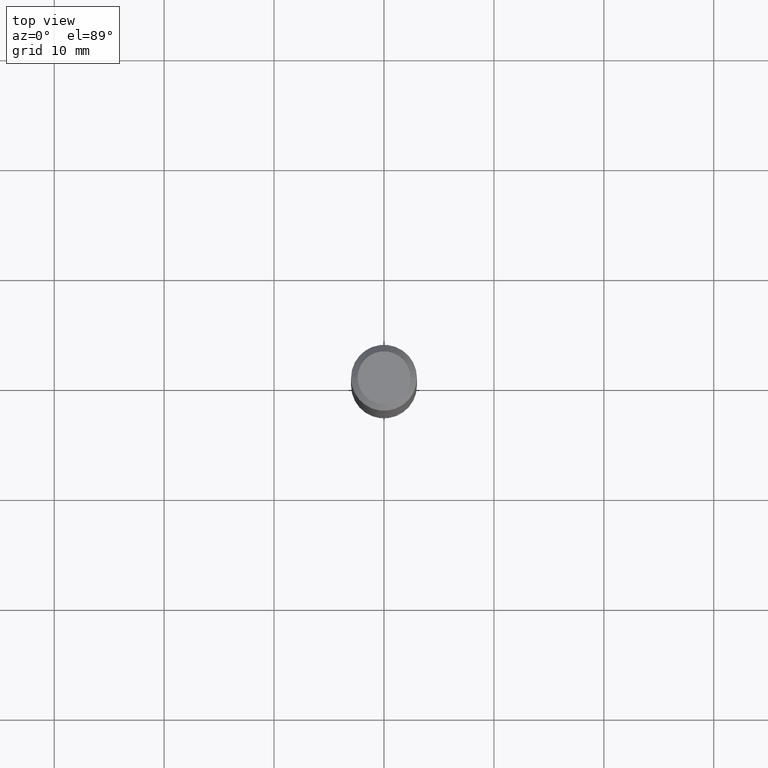
[diagram: clean part render]
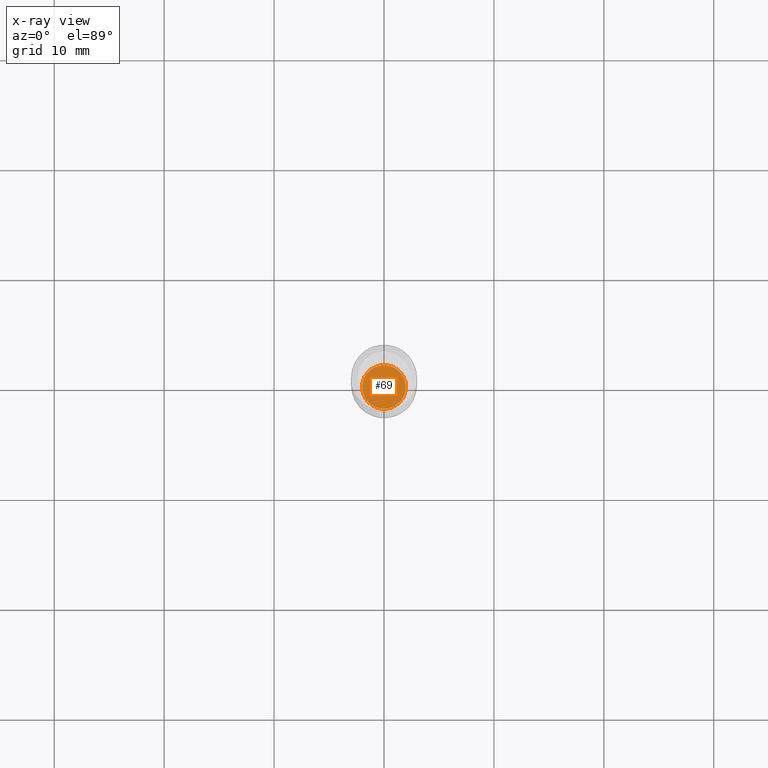
[diagram: x-ray — body ghosted, one internal face saturated and labeled with its STEP entity id]
A machine part, top view, then the same camera in x-ray: the body is ghosted and one INTERNAL B-rep face — a face not visible from any outside direction — is saturated and labeled: STEP entity #69.
In plain terms, the highlighted planar face has unit normal (-0, 0, 1).
Its self-contained STEP definition (entity closure, byte-faithful):
#17 = CARTESIAN_POINT ( 'NONE',  ( -0.07825000000000000011, -6.176767732855921811E-15, -1.929099999999999593 ) ) ;
#40 = PLANE ( 'NONE',  #228 ) ;
#44 = DIRECTION ( 'NONE',  ( -2.438088387897960049E-29, 3.491481338843145188E-15, 1.000000000000000000 ) ) ;
#69 = ADVANCED_FACE ( 'NONE', ( #457 ), #40, .F. ) ;
#71 = ORIENTED_EDGE ( 'NONE', *, *, #274, .F. ) ;
#82 = CIRCLE ( 'NONE', #352, 0.07825000000000000011 ) ;
#87 = CARTESIAN_POINT ( 'NONE',  ( 4.717553874011746118E-29, -6.735416650762310126E-15, -1.929099999999999593 ) ) ;
#100 = ORIENTED_EDGE ( 'NONE', *, *, #187, .F. ) ;
#111 = AXIS2_PLACEMENT_3D ( 'NONE', #169, #386, #465 ) ;
#169 = CARTESIAN_POINT ( 'NONE',  ( 4.717553874011746118E-29, -6.735416650762310126E-15, -1.929099999999999593 ) ) ;
#187 = EDGE_CURVE ( 'NONE', #254, #332, #82, .T. ) ;
#228 = AXIS2_PLACEMENT_3D ( 'NONE', #407, #44, #379 ) ;
#235 = DIRECTION ( 'NONE',  ( 1.000000000000000000, -6.982962677686267499E-15, 0.000000000000000000 ) ) ;
#250 = CARTESIAN_POINT ( 'NONE',  ( 0.07825000000000000011, -7.281833480291261254E-15, -1.929099999999999593 ) ) ;
#254 = VERTEX_POINT ( 'NONE', #17 ) ;
#274 = EDGE_CURVE ( 'NONE', #332, #254, #320, .T. ) ;
#296 = EDGE_LOOP ( 'NONE', ( #71, #100 ) ) ;
#320 = CIRCLE ( 'NONE', #111, 0.07825000000000000011 ) ;
#332 = VERTEX_POINT ( 'NONE', #250 ) ;
#352 = AXIS2_PLACEMENT_3D ( 'NONE', #87, #390, #235 ) ;
#379 = DIRECTION ( 'NONE',  ( 1.000000000000000000, -6.982962677686265922E-15, 4.876176775795935793E-29 ) ) ;
#386 = DIRECTION ( 'NONE',  ( -2.445468806185136597E-29, 3.491481338843145583E-15, 1.000000000000000000 ) ) ;
#390 = DIRECTION ( 'NONE',  ( -2.445468806185136597E-29, 3.491481338843145583E-15, 1.000000000000000000 ) ) ;
#407 = CARTESIAN_POINT ( 'NONE',  ( 9.420463641137069997E-29, -5.821912380552521061E-19, -1.929099999999999815 ) ) ;
#457 = FACE_OUTER_BOUND ( 'NONE', #296, .T. ) ;
#465 = DIRECTION ( 'NONE',  ( 1.000000000000000000, -6.982962677686267499E-15, 0.000000000000000000 ) ) ;